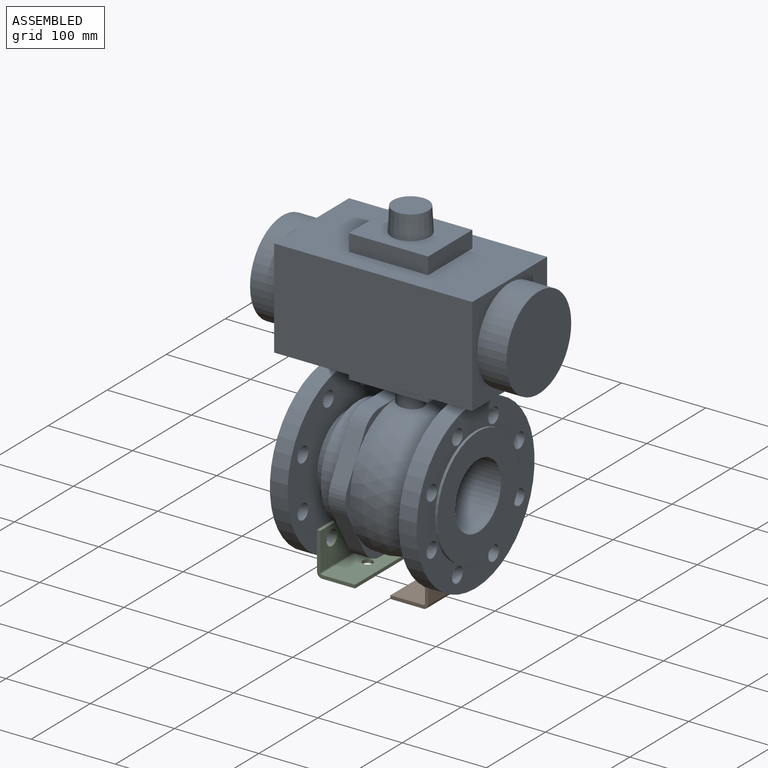
[diagram: assembled view]
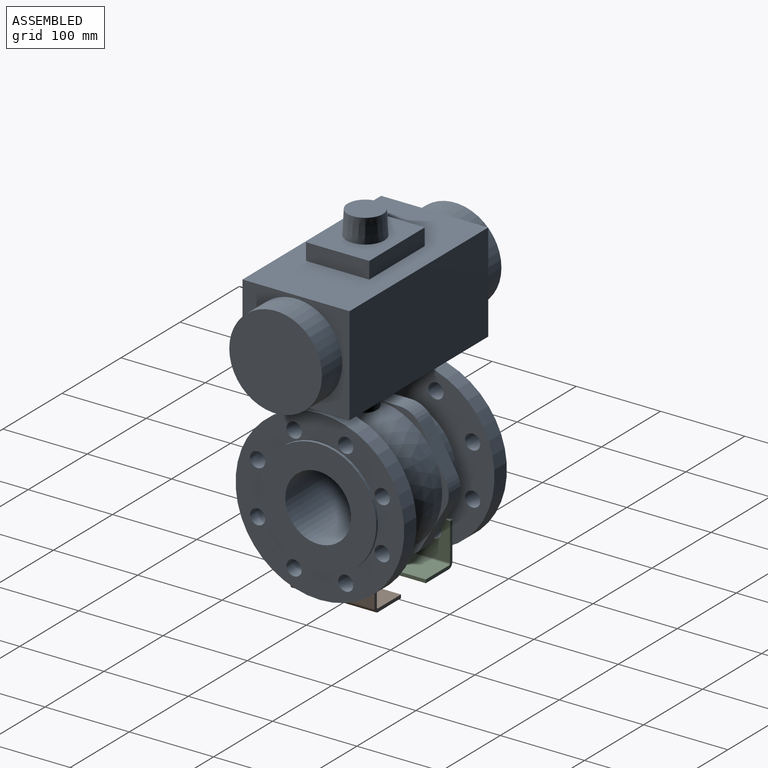
[diagram: assembled view, second angle]
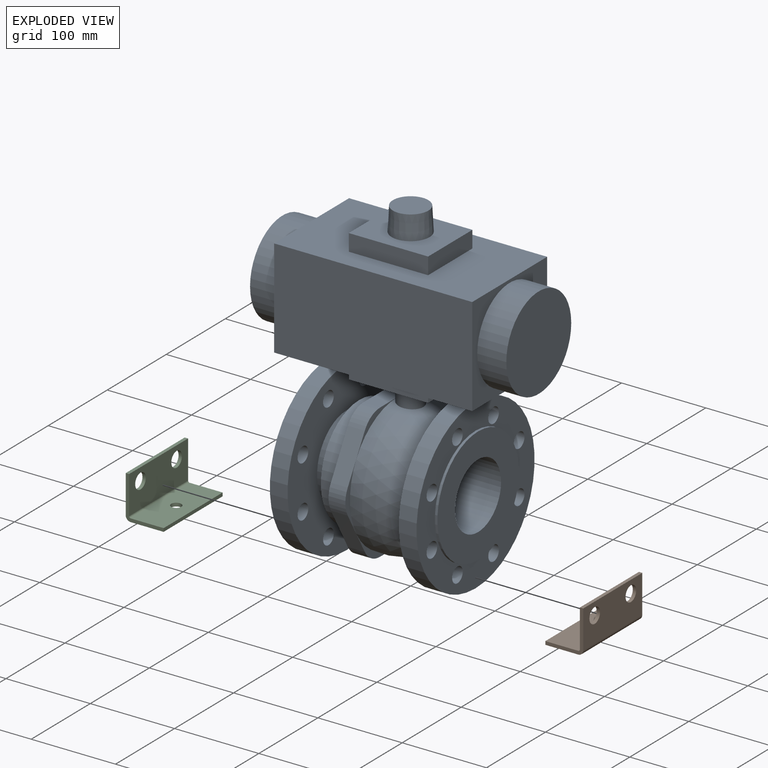
[diagram: exploded view]
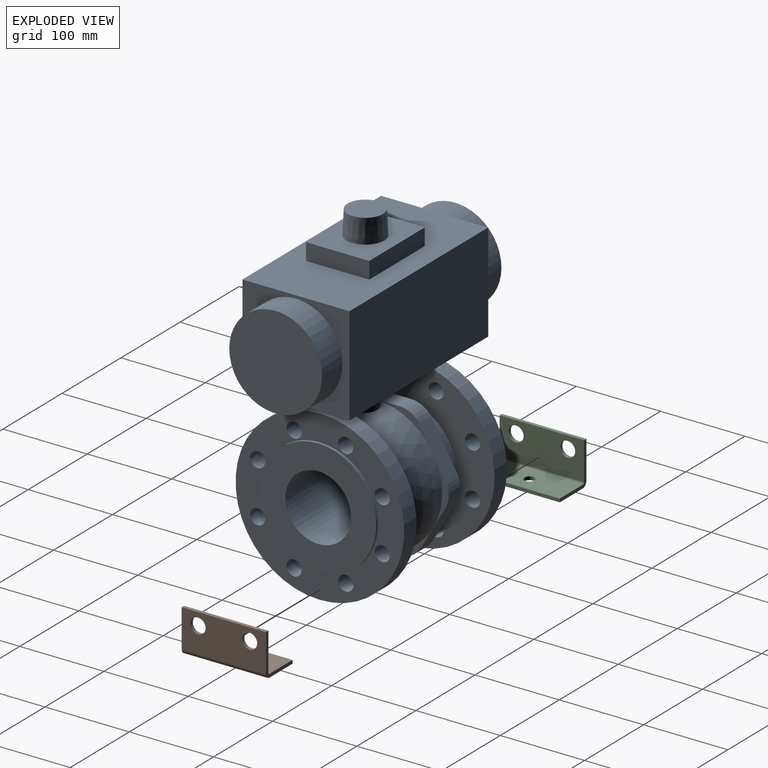
[diagram: exploded view, second angle]
ASSEMBLY  parts=3 mates=2
PART A: 74 faces, bbox 304x200x390 mm
  f0: plane 69.28x40mm, normal (1,0,0), area 295.6mm2, adj f6,f46,f55,f57
  f1: plane 80x18.45mm, normal (1,0,0), area 295.6mm2, adj f6,f46,f47,f48
  f2: plane 69.28x40mm, normal (1,0,0), area 295.6mm2, adj f6,f54,f56,f57
  f3: plane 69.28x40mm, normal (1,0,0), area 295.6mm2, adj f6,f48,f49,f50
  f4: plane 69.28x40mm, normal (1,0,0), area 295.6mm2, adj f6,f50,f51,f52
  f5: plane 80x18.45mm, normal (1,0,0), area 295.6mm2, adj f6,f52,f53,f54
  f6: sphere r=80.62mm, area 33226.2mm2, adj f0,f1,f2,f3,f4,f5,f10,f22
  f7: plane 200x200mm, normal (1,0,0), area 14423.1mm2, adj f8,f21,f66,f67,f68,f69,f70,f71
  f8: cylinder r=100mm len=200mm, axis (-1,0,0), area 13194.7mm2, adj f7,f9
  f9: plane 200x200mm, normal (-1,0,0), area 19173.1mm2, adj f8,f10,f66,f67,f68,f69,f70,f71
  f10: cylinder r=57mm len=114mm, axis (-1,0,0), area 1790.7mm2, adj f6,f9
  f11: plane 175.47x160mm, normal (-1,0,0), area 8606.8mm2, adj f12,f46,f47,f48,f49,f50,f51,f52
  f12: cylinder r=65mm len=130mm, axis (-1,0,0), area 10210.2mm2, adj f11,f13
  f13: plane 130x130mm, normal (-1,0,0), area 5419.2mm2, adj f12,f14
  f14: cylinder r=50mm len=100mm, axis (-1,0,0), area 4712.4mm2, adj f13,f15
  f15: plane 200x200mm, normal (1,0,0), area 21526.2mm2, adj f14,f16,f58,f59,f60,f61,f62,f63
  f16: cylinder r=100mm len=200mm, axis (-1,0,0), area 13194.7mm2, adj f15,f17
  f17: plane 200x200mm, normal (-1,0,0), area 14423.1mm2, adj f16,f18,f58,f59,f60,f61,f62,f63
  f18: cylinder r=69mm len=138mm, axis (-1,0,0), area 1300.6mm2, adj f17,f19
  f19: plane 138x138mm, normal (-1,0,0), area 10178.8mm2, adj f18,f45
  f20: plane 138x138mm, normal (1,0,0), area 10178.8mm2, adj f21,f45
  f21: cylinder r=69mm len=138mm, axis (-1,0,0), area 1300.6mm2, adj f7,f20
  f22: cylinder r=15mm len=30mm, axis (0,0,-1), area 2452.3mm2, adj f6,f27
  f23: plane 75x20mm, normal (-1,0,0), area 1500mm2, adj f24,f26,f27,f29
  f24: plane 94x20mm, normal (0,-1,0), area 1880mm2, adj f23,f25,f27,f29
  f25: plane 75x20mm, normal (1,0,0), area 1500mm2, adj f24,f26,f27,f29
  f26: plane 94x20mm, normal (0,1,0), area 1880mm2, adj f23,f25,f27,f29
  f27: plane 94x75mm, normal (0,0,-1), area 6343.1mm2, adj f22,f23,f24,f25,f26
  f28: plane 235x127mm, normal (0,0,1), area 22795mm2, adj f30,f31,f32,f33,f35,f36,f37,f38
  f29: plane 235x127mm, normal (0,0,-1), area 22795mm2, adj f23,f24,f25,f26,f30,f31,f32,f33
  f30: plane 127x117mm, normal (-1,0,0), area 5355.7mm2, adj f28,f29,f31,f33,f41
  f31: plane 235x117mm, normal (0,1,0), area 27495mm2, adj f28,f29,f30,f32
  f32: plane 127x117mm, normal (1,0,0), area 5355.7mm2, adj f28,f29,f31,f33,f40
  f33: plane 235x117mm, normal (0,-1,0), area 27495mm2, adj f28,f29,f30,f32
  f34: plane 94x75mm, normal (0,0,1), area 5459.6mm2, adj f35,f36,f37,f38,f43
  f35: plane 94x20mm, normal (0,1,0), area 1880mm2, adj f28,f34,f36,f38
  f36: plane 75x20mm, normal (1,0,0), area 1500mm2, adj f28,f34,f35,f37
  f37: plane 94x20mm, normal (0,-1,0), area 1880mm2, adj f28,f34,f36,f38
  f38: plane 75x20mm, normal (-1,0,0), area 1500mm2, adj f28,f34,f35,f37
  f39: plane 110x110mm, normal (1,0,0), area 9503.3mm2, adj f40
  f40: cylinder r=55mm len=110mm, axis (-1,0,0), area 11922.3mm2, adj f32,f39
  f41: cylinder r=55mm len=110mm, axis (-1,0,0), area 11922.3mm2, adj f30,f42
  f42: plane 110x110mm, normal (-1,0,0), area 9503.3mm2, adj f41
  f43: cone r=22.5mm half-angle=3deg, axis (0,0,-1), area 3834.6mm2, adj f34,f44
  f44: plane 42.07x42.07mm, normal (0,0,1), area 1389.7mm2, adj f43
  f45: cylinder r=39mm len=180mm, axis (-1,0,0), area 44108mm2, adj f19,f20
  f46: plane 50x28.87mm, normal (0,0.87,-0.5), area 1154.7mm2, adj f0,f1,f11,f47,f55
  f47: cylinder r=30mm len=30mm, axis (-1,0,0), area 628.3mm2, adj f1,f11,f46,f48
  f48: plane 50x28.87mm, normal (0,0.87,0.5), area 1154.7mm2, adj f1,f3,f11,f47,f49
  f49: cylinder r=30mm len=25.98mm, axis (-1,0,0), area 628.3mm2, adj f3,f11,f48,f50
  f50: plane 57.74x20mm, normal (0,0,1), area 1154.7mm2, adj f3,f4,f11,f49,f51
  f51: cylinder r=30mm len=25.98mm, axis (-1,0,0), area 628.3mm2, adj f4,f11,f50,f52
  f52: plane 50x28.87mm, normal (0,-0.87,0.5), area 1154.7mm2, adj f4,f5,f11,f51,f53
  f53: cylinder r=30mm len=30mm, axis (-1,0,0), area 628.3mm2, adj f5,f11,f52,f54
  f54: plane 50x28.87mm, normal (0,-0.87,-0.5), area 1154.7mm2, adj f2,f5,f11,f53,f56
  f55: cylinder r=30mm len=25.98mm, axis (-1,0,0), area 628.3mm2, adj f0,f11,f46,f57
  f56: cylinder r=30mm len=25.98mm, axis (-1,0,0), area 628.3mm2, adj f2,f11,f54,f57
  f57: plane 57.74x20mm, normal (0,0,-1), area 1154.7mm2, adj f0,f2,f11,f55,f56
  f58: cylinder r=9mm len=21mm, axis (-1,0,0), area 1187.5mm2, adj f15,f17
  f59: cylinder r=9mm len=21mm, axis (-1,0,0), area 1187.5mm2, adj f15,f17
  f60: cylinder r=9mm len=21mm, axis (-1,0,0), area 1187.5mm2, adj f15,f17
  f61: cylinder r=9mm len=21mm, axis (-1,0,0), area 1187.5mm2, adj f15,f17
  f62: cylinder r=9mm len=21mm, axis (-1,0,0), area 1187.5mm2, adj f15,f17
  f63: cylinder r=9mm len=21mm, axis (-1,0,0), area 1187.5mm2, adj f15,f17
  f64: cylinder r=9mm len=21mm, axis (-1,0,0), area 1187.5mm2, adj f15,f17
  f65: cylinder r=9mm len=21mm, axis (-1,0,0), area 1187.5mm2, adj f15,f17
  f66: cylinder r=9mm len=21mm, axis (1,0,0), area 1187.5mm2, adj f7,f9
  f67: cylinder r=9mm len=21mm, axis (1,0,0), area 1187.5mm2, adj f7,f9
  f68: cylinder r=9mm len=21mm, axis (1,0,0), area 1187.5mm2, adj f7,f9
  f69: cylinder r=9mm len=21mm, axis (1,0,0), area 1187.5mm2, adj f7,f9
  f70: cylinder r=9mm len=21mm, axis (1,0,0), area 1187.5mm2, adj f7,f9
  f71: cylinder r=9mm len=21mm, axis (1,0,0), area 1187.5mm2, adj f7,f9
  f72: cylinder r=9mm len=21mm, axis (1,0,0), area 1187.5mm2, adj f7,f9
  f73: cylinder r=9mm len=21mm, axis (1,0,0), area 1187.5mm2, adj f7,f9
PART B: 13 faces, bbox 45x100x51 mm
  f0: plane 51x45mm, normal (0,-1,0), area 361.1mm2, adj f2,f3,f4,f5,f6,f7,f11,f12
  f1: plane 51x45mm, normal (0,1,0), area 361.1mm2, adj f2,f3,f4,f5,f6,f7,f11,f12
  f2: plane 100x39mm, normal (0,0,-1), area 3786.9mm2, adj f0,f1,f7,f10,f12
  f3: plane 100x45mm, normal (-1,0,0), area 3991.1mm2, adj f0,f1,f7,f8,f9,f11
  f4: plane 100x45mm, normal (1,0,0), area 3991.1mm2, adj f0,f1,f6,f8,f9,f11
  f5: plane 100x39mm, normal (0,0,1), area 3786.9mm2, adj f0,f1,f6,f10,f12
  f6: cylinder r=2mm len=100mm, axis (0,-1,0), area 314.2mm2, adj f0,f1,f4,f5
  f7: cylinder r=6mm len=100mm, axis (0,1,0), area 942.5mm2, adj f0,f1,f2,f3
  f8: cylinder r=9mm len=18mm, axis (-1,0,0), area 226.2mm2, adj f3,f4
  f9: cylinder r=9mm len=18mm, axis (-1,0,0), area 226.2mm2, adj f3,f4
  f10: cylinder r=6mm len=12mm, axis (0,0,-1), area 150.8mm2, adj f2,f5
  f11: plane 100x4mm, normal (0,0,1), area 400mm2, adj f0,f1,f3,f4
  f12: plane 100x4mm, normal (1,0,0), area 400mm2, adj f0,f1,f2,f5
PART C: same geometry as B
PLACE A at identity fixed
PLACE B rot(axis=(0,0,1),180deg) t=(156,0.01,-110.01)mm
PLACE C t=(24,-0.01,-110.01)mm
MATE fastened C.f9 <-> A.f60  axis (-1,0,0) through (24,-30.61,-73.91)mm
MATE fastened B.f9 <-> A.f61  axis (1,0,0) through (156,30.61,-73.91)mm
